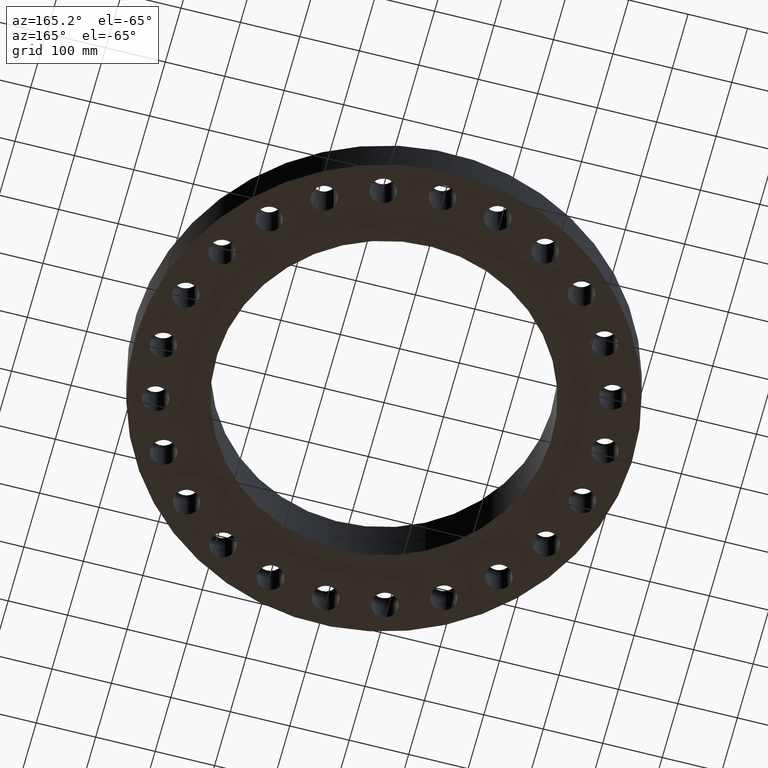
[diagram: clean part render]
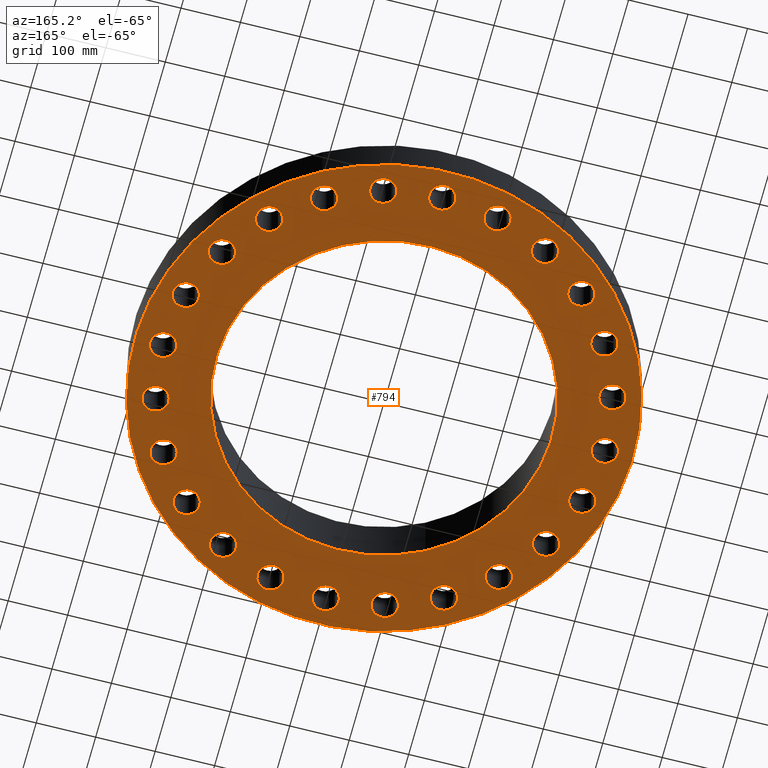
[diagram: same view with one face highlighted and labeled with its STEP entity id]
A machine part, auxiliary view. The second image highlights one B-rep face of the part: STEP entity #794.
In plain terms, the highlighted planar face has unit normal (0, 0, -1).
Its self-contained STEP definition (entity closure, byte-faithful):
#51=AXIS2_PLACEMENT_3D('Circle Axis2P3D',#49,#50,$) ;
#77=AXIS2_PLACEMENT_3D('Circle Axis2P3D',#75,#76,$) ;
#99=AXIS2_PLACEMENT_3D('Circle Axis2P3D',#97,#98,$) ;
#134=AXIS2_PLACEMENT_3D('Circle Axis2P3D',#132,#133,$) ;
#334=AXIS2_PLACEMENT_3D('Circle Axis2P3D',#332,#333,$) ;
#353=AXIS2_PLACEMENT_3D('Circle Axis2P3D',#351,#352,$) ;
#366=AXIS2_PLACEMENT_3D('Plane Axis2P3D',#363,#364,#365) ;
#382=AXIS2_PLACEMENT_3D('Circle Axis2P3D',#380,#381,$) ;
#391=AXIS2_PLACEMENT_3D('Circle Axis2P3D',#389,#390,$) ;
#400=AXIS2_PLACEMENT_3D('Circle Axis2P3D',#398,#399,$) ;
#409=AXIS2_PLACEMENT_3D('Circle Axis2P3D',#407,#408,$) ;
#418=AXIS2_PLACEMENT_3D('Circle Axis2P3D',#416,#417,$) ;
#427=AXIS2_PLACEMENT_3D('Circle Axis2P3D',#425,#426,$) ;
#436=AXIS2_PLACEMENT_3D('Circle Axis2P3D',#434,#435,$) ;
#445=AXIS2_PLACEMENT_3D('Circle Axis2P3D',#443,#444,$) ;
#454=AXIS2_PLACEMENT_3D('Circle Axis2P3D',#452,#453,$) ;
#463=AXIS2_PLACEMENT_3D('Circle Axis2P3D',#461,#462,$) ;
#472=AXIS2_PLACEMENT_3D('Circle Axis2P3D',#470,#471,$) ;
#481=AXIS2_PLACEMENT_3D('Circle Axis2P3D',#479,#480,$) ;
#490=AXIS2_PLACEMENT_3D('Circle Axis2P3D',#488,#489,$) ;
#499=AXIS2_PLACEMENT_3D('Circle Axis2P3D',#497,#498,$) ;
#508=AXIS2_PLACEMENT_3D('Circle Axis2P3D',#506,#507,$) ;
#517=AXIS2_PLACEMENT_3D('Circle Axis2P3D',#515,#516,$) ;
#526=AXIS2_PLACEMENT_3D('Circle Axis2P3D',#524,#525,$) ;
#535=AXIS2_PLACEMENT_3D('Circle Axis2P3D',#533,#534,$) ;
#544=AXIS2_PLACEMENT_3D('Circle Axis2P3D',#542,#543,$) ;
#553=AXIS2_PLACEMENT_3D('Circle Axis2P3D',#551,#552,$) ;
#562=AXIS2_PLACEMENT_3D('Circle Axis2P3D',#560,#561,$) ;
#571=AXIS2_PLACEMENT_3D('Circle Axis2P3D',#569,#570,$) ;
#580=AXIS2_PLACEMENT_3D('Circle Axis2P3D',#578,#579,$) ;
#589=AXIS2_PLACEMENT_3D('Circle Axis2P3D',#587,#588,$) ;
#598=AXIS2_PLACEMENT_3D('Circle Axis2P3D',#596,#597,$) ;
#607=AXIS2_PLACEMENT_3D('Circle Axis2P3D',#605,#606,$) ;
#616=AXIS2_PLACEMENT_3D('Circle Axis2P3D',#614,#615,$) ;
#625=AXIS2_PLACEMENT_3D('Circle Axis2P3D',#623,#624,$) ;
#634=AXIS2_PLACEMENT_3D('Circle Axis2P3D',#632,#633,$) ;
#643=AXIS2_PLACEMENT_3D('Circle Axis2P3D',#641,#642,$) ;
#652=AXIS2_PLACEMENT_3D('Circle Axis2P3D',#650,#651,$) ;
#661=AXIS2_PLACEMENT_3D('Circle Axis2P3D',#659,#660,$) ;
#670=AXIS2_PLACEMENT_3D('Circle Axis2P3D',#668,#669,$) ;
#679=AXIS2_PLACEMENT_3D('Circle Axis2P3D',#677,#678,$) ;
#688=AXIS2_PLACEMENT_3D('Circle Axis2P3D',#686,#687,$) ;
#697=AXIS2_PLACEMENT_3D('Circle Axis2P3D',#695,#696,$) ;
#706=AXIS2_PLACEMENT_3D('Circle Axis2P3D',#704,#705,$) ;
#715=AXIS2_PLACEMENT_3D('Circle Axis2P3D',#713,#714,$) ;
#724=AXIS2_PLACEMENT_3D('Circle Axis2P3D',#722,#723,$) ;
#733=AXIS2_PLACEMENT_3D('Circle Axis2P3D',#731,#732,$) ;
#742=AXIS2_PLACEMENT_3D('Circle Axis2P3D',#740,#741,$) ;
#751=AXIS2_PLACEMENT_3D('Circle Axis2P3D',#749,#750,$) ;
#760=AXIS2_PLACEMENT_3D('Circle Axis2P3D',#758,#759,$) ;
#769=AXIS2_PLACEMENT_3D('Circle Axis2P3D',#767,#768,$) ;
#778=AXIS2_PLACEMENT_3D('Circle Axis2P3D',#776,#777,$) ;
#787=AXIS2_PLACEMENT_3D('Circle Axis2P3D',#785,#786,$) ;
#44=CARTESIAN_POINT('Vertex',(13.8571152584,0.41949734628,0.)) ;
#49=CARTESIAN_POINT('Axis2P3D Location',(14.6250000001,0.,0.)) ;
#53=CARTESIAN_POINT('Vertex',(15.3928847417,-0.41949734628,0.)) ;
#75=CARTESIAN_POINT('Axis2P3D Location',(14.6250000001,0.,0.)) ;
#97=CARTESIAN_POINT('Axis2P3D Location',(0.,0.,1.95818864186E-015)) ;
#101=CARTESIAN_POINT('Vertex',(-7.910521387,-14.4801122712,1.67844740731E-015)) ;
#103=CARTESIAN_POINT('Vertex',(7.910521387,14.4801122712,1.67844740731E-015)) ;
#132=CARTESIAN_POINT('Axis2P3D Location',(0.,0.,1.95818864186E-015)) ;
#329=CARTESIAN_POINT('Vertex',(-5.32641773391,-9.74994226264,-1.3707320493E-014)) ;
#332=CARTESIAN_POINT('Axis2P3D Location',(0.,0.,-1.45465441967E-014)) ;
#336=CARTESIAN_POINT('Vertex',(5.32641773391,9.74994226264,-1.3707320493E-014)) ;
#351=CARTESIAN_POINT('Axis2P3D Location',(0.,0.,-1.45465441967E-014)) ;
#363=CARTESIAN_POINT('Axis2P3D Location',(0.,11.11,0.)) ;
#380=CARTESIAN_POINT('Axis2P3D Location',(14.1266652095,-3.78522853464,0.)) ;
#384=CARTESIAN_POINT('Vertex',(13.4935194085,-3.18128201822,0.)) ;
#386=CARTESIAN_POINT('Vertex',(14.7598110105,-4.38917505106,0.)) ;
#389=CARTESIAN_POINT('Axis2P3D Location',(14.1266652095,-3.78522853464,0.)) ;
#398=CARTESIAN_POINT('Axis2P3D Location',(12.6656215304,-7.31250000003,0.)) ;
#402=CARTESIAN_POINT('Vertex',(12.2103625101,-6.5652622705,0.)) ;
#404=CARTESIAN_POINT('Vertex',(13.1208805507,-8.05973772956,0.)) ;
#407=CARTESIAN_POINT('Axis2P3D Location',(12.6656215304,-7.31250000003,0.)) ;
#416=CARTESIAN_POINT('Axis2P3D Location',(10.3414366749,-10.3414366749,0.)) ;
#420=CARTESIAN_POINT('Vertex',(10.0950895851,-9.50183074865,0.)) ;
#422=CARTESIAN_POINT('Vertex',(10.5877837646,-11.1810426011,0.)) ;
#425=CARTESIAN_POINT('Axis2P3D Location',(10.3414366749,-10.3414366749,0.)) ;
#434=CARTESIAN_POINT('Axis2P3D Location',(7.31250000003,-12.6656215304,0.)) ;
#438=CARTESIAN_POINT('Vertex',(7.2918529879,-11.7908651638,0.)) ;
#440=CARTESIAN_POINT('Vertex',(7.33314701216,-13.540377897,0.)) ;
#443=CARTESIAN_POINT('Axis2P3D Location',(7.31250000003,-12.6656215304,0.)) ;
#452=CARTESIAN_POINT('Axis2P3D Location',(3.78522853464,-14.1266652095,0.)) ;
#456=CARTESIAN_POINT('Vertex',(3.99168865989,-13.2763716034,0.)) ;
#458=CARTESIAN_POINT('Vertex',(3.57876840939,-14.9769588157,0.)) ;
#461=CARTESIAN_POINT('Axis2P3D Location',(3.78522853464,-14.1266652095,0.)) ;
#470=CARTESIAN_POINT('Axis2P3D Location',(-2.30786518505E-015,-14.6250000001,0.)) ;
#474=CARTESIAN_POINT('Vertex',(0.41949734628,-13.8571152584,0.)) ;
#476=CARTESIAN_POINT('Vertex',(-0.41949734628,-15.3928847417,0.)) ;
#479=CARTESIAN_POINT('Axis2P3D Location',(-3.21702419734E-015,-14.6250000001,0.)) ;
#488=CARTESIAN_POINT('Axis2P3D Location',(-3.78522853464,-14.1266652095,0.)) ;
#492=CARTESIAN_POINT('Vertex',(-3.18128201822,-13.4935194085,0.)) ;
#494=CARTESIAN_POINT('Vertex',(-4.38917505106,-14.7598110105,-1.1189649382E-015)) ;
#497=CARTESIAN_POINT('Axis2P3D Location',(-3.78522853464,-14.1266652095,0.)) ;
#506=CARTESIAN_POINT('Axis2P3D Location',(-7.31250000003,-12.6656215304,0.)) ;
#510=CARTESIAN_POINT('Vertex',(-6.5652622705,-12.2103625101,0.)) ;
#512=CARTESIAN_POINT('Vertex',(-8.05973772956,-13.1208805507,-2.23792987641E-015)) ;
#515=CARTESIAN_POINT('Axis2P3D Location',(-7.31250000003,-12.6656215304,0.)) ;
#524=CARTESIAN_POINT('Axis2P3D Location',(-10.3414366749,-10.3414366749,0.)) ;
#528=CARTESIAN_POINT('Vertex',(-9.50183074865,-10.0950895851,0.)) ;
#530=CARTESIAN_POINT('Vertex',(-11.1810426011,-10.5877837646,0.)) ;
#533=CARTESIAN_POINT('Axis2P3D Location',(-10.3414366749,-10.3414366749,0.)) ;
#542=CARTESIAN_POINT('Axis2P3D Location',(-12.6656215304,-7.31250000003,0.)) ;
#546=CARTESIAN_POINT('Vertex',(-11.7908651638,-7.2918529879,0.)) ;
#548=CARTESIAN_POINT('Vertex',(-13.540377897,-7.33314701216,0.)) ;
#551=CARTESIAN_POINT('Axis2P3D Location',(-12.6656215304,-7.31250000003,0.)) ;
#560=CARTESIAN_POINT('Axis2P3D Location',(-14.1266652095,-3.78522853464,0.)) ;
#564=CARTESIAN_POINT('Vertex',(-13.2763716034,-3.99168865989,0.)) ;
#566=CARTESIAN_POINT('Vertex',(-14.9769588157,-3.57876840939,0.)) ;
#569=CARTESIAN_POINT('Axis2P3D Location',(-14.1266652095,-3.78522853464,0.)) ;
#578=CARTESIAN_POINT('Axis2P3D Location',(-14.6250000001,-2.23792987641E-015,0.)) ;
#582=CARTESIAN_POINT('Vertex',(-13.8571152584,-0.41949734628,0.)) ;
#584=CARTESIAN_POINT('Vertex',(-15.3928847417,0.41949734628,0.)) ;
#587=CARTESIAN_POINT('Axis2P3D Location',(-14.6250000001,0.,0.)) ;
#596=CARTESIAN_POINT('Axis2P3D Location',(-14.1266652095,3.78522853464,0.)) ;
#600=CARTESIAN_POINT('Vertex',(-13.4935194085,3.18128201822,0.)) ;
#602=CARTESIAN_POINT('Vertex',(-14.7598110105,4.38917505106,0.)) ;
#605=CARTESIAN_POINT('Axis2P3D Location',(-14.1266652095,3.78522853464,0.)) ;
#614=CARTESIAN_POINT('Axis2P3D Location',(-12.6656215304,7.31250000003,0.)) ;
#618=CARTESIAN_POINT('Vertex',(-12.2103625101,6.5652622705,0.)) ;
#620=CARTESIAN_POINT('Vertex',(-13.1208805507,8.05973772956,0.)) ;
#623=CARTESIAN_POINT('Axis2P3D Location',(-12.6656215304,7.31250000003,0.)) ;
#632=CARTESIAN_POINT('Axis2P3D Location',(-10.3414366749,10.3414366749,0.)) ;
#636=CARTESIAN_POINT('Vertex',(-10.0950895851,9.50183074865,0.)) ;
#638=CARTESIAN_POINT('Vertex',(-10.5877837646,11.1810426011,0.)) ;
#641=CARTESIAN_POINT('Axis2P3D Location',(-10.3414366749,10.3414366749,0.)) ;
#650=CARTESIAN_POINT('Axis2P3D Location',(-7.31250000003,12.6656215304,0.)) ;
#654=CARTESIAN_POINT('Vertex',(-7.2918529879,11.7908651638,0.)) ;
#656=CARTESIAN_POINT('Vertex',(-7.33314701216,13.540377897,0.)) ;
#659=CARTESIAN_POINT('Axis2P3D Location',(-7.31250000003,12.6656215304,0.)) ;
#668=CARTESIAN_POINT('Axis2P3D Location',(-3.78522853464,14.1266652095,0.)) ;
#672=CARTESIAN_POINT('Vertex',(-3.99168865989,13.2763716034,0.)) ;
#674=CARTESIAN_POINT('Vertex',(-3.57876840939,14.9769588157,0.)) ;
#677=CARTESIAN_POINT('Axis2P3D Location',(-3.78522853464,14.1266652095,0.)) ;
#686=CARTESIAN_POINT('Axis2P3D Location',(-1.95818864186E-015,14.6250000001,0.)) ;
#690=CARTESIAN_POINT('Vertex',(-0.41949734628,13.8571152584,0.)) ;
#692=CARTESIAN_POINT('Vertex',(0.41949734628,15.3928847417,0.)) ;
#695=CARTESIAN_POINT('Axis2P3D Location',(-2.65754172824E-015,14.6250000001,0.)) ;
#704=CARTESIAN_POINT('Axis2P3D Location',(3.78522853464,14.1266652095,0.)) ;
#708=CARTESIAN_POINT('Vertex',(3.18128201822,13.4935194085,0.)) ;
#710=CARTESIAN_POINT('Vertex',(4.38917505106,14.7598110105,0.)) ;
#713=CARTESIAN_POINT('Axis2P3D Location',(3.78522853464,14.1266652095,0.)) ;
#722=CARTESIAN_POINT('Axis2P3D Location',(7.31250000003,12.6656215304,0.)) ;
#726=CARTESIAN_POINT('Vertex',(6.5652622705,12.2103625101,0.)) ;
#728=CARTESIAN_POINT('Vertex',(8.05973772956,13.1208805507,0.)) ;
#731=CARTESIAN_POINT('Axis2P3D Location',(7.31250000003,12.6656215304,0.)) ;
#740=CARTESIAN_POINT('Axis2P3D Location',(10.3414366749,10.3414366749,0.)) ;
#744=CARTESIAN_POINT('Vertex',(9.50183074865,10.0950895851,0.)) ;
#746=CARTESIAN_POINT('Vertex',(11.1810426011,10.5877837646,0.)) ;
#749=CARTESIAN_POINT('Axis2P3D Location',(10.3414366749,10.3414366749,0.)) ;
#758=CARTESIAN_POINT('Axis2P3D Location',(12.6656215304,7.31250000003,0.)) ;
#762=CARTESIAN_POINT('Vertex',(11.7908651638,7.2918529879,0.)) ;
#764=CARTESIAN_POINT('Vertex',(13.540377897,7.33314701216,0.)) ;
#767=CARTESIAN_POINT('Axis2P3D Location',(12.6656215304,7.31250000003,0.)) ;
#776=CARTESIAN_POINT('Axis2P3D Location',(14.1266652095,3.78522853464,0.)) ;
#780=CARTESIAN_POINT('Vertex',(13.2763716034,3.99168865989,0.)) ;
#782=CARTESIAN_POINT('Vertex',(14.9769588157,3.57876840939,0.)) ;
#785=CARTESIAN_POINT('Axis2P3D Location',(14.1266652095,3.78522853464,0.)) ;
#50=DIRECTION('Axis2P3D Direction',(0.,-0.,-0.0393700787402)) ;
#76=DIRECTION('Axis2P3D Direction',(0.,-0.,-0.0393700787402)) ;
#98=DIRECTION('Axis2P3D Direction',(0.,0.,-0.0393700787402)) ;
#133=DIRECTION('Axis2P3D Direction',(0.,0.,-0.0393700787402)) ;
#333=DIRECTION('Axis2P3D Direction',(0.,0.,-0.0393700787402)) ;
#352=DIRECTION('Axis2P3D Direction',(0.,0.,-0.0393700787402)) ;
#364=DIRECTION('Axis2P3D Direction',(0.,0.,-0.0393700787402)) ;
#365=DIRECTION('Axis2P3D XDirection',(0.0393700787402,0.,0.)) ;
#381=DIRECTION('Axis2P3D Direction',(0.,0.,-0.0393700787402)) ;
#390=DIRECTION('Axis2P3D Direction',(0.,0.,-0.0393700787402)) ;
#399=DIRECTION('Axis2P3D Direction',(0.,0.,-0.0393700787402)) ;
#408=DIRECTION('Axis2P3D Direction',(0.,0.,-0.0393700787402)) ;
#417=DIRECTION('Axis2P3D Direction',(0.,0.,-0.0393700787402)) ;
#426=DIRECTION('Axis2P3D Direction',(0.,0.,-0.0393700787402)) ;
#435=DIRECTION('Axis2P3D Direction',(0.,0.,-0.0393700787402)) ;
#444=DIRECTION('Axis2P3D Direction',(0.,0.,-0.0393700787402)) ;
#453=DIRECTION('Axis2P3D Direction',(0.,0.,-0.0393700787402)) ;
#462=DIRECTION('Axis2P3D Direction',(0.,0.,-0.0393700787402)) ;
#471=DIRECTION('Axis2P3D Direction',(0.,0.,-0.0393700787402)) ;
#480=DIRECTION('Axis2P3D Direction',(0.,0.,-0.0393700787402)) ;
#489=DIRECTION('Axis2P3D Direction',(0.,0.,-0.0393700787402)) ;
#498=DIRECTION('Axis2P3D Direction',(0.,0.,-0.0393700787402)) ;
#507=DIRECTION('Axis2P3D Direction',(0.,0.,-0.0393700787402)) ;
#516=DIRECTION('Axis2P3D Direction',(0.,0.,-0.0393700787402)) ;
#525=DIRECTION('Axis2P3D Direction',(0.,0.,-0.0393700787402)) ;
#534=DIRECTION('Axis2P3D Direction',(0.,0.,-0.0393700787402)) ;
#543=DIRECTION('Axis2P3D Direction',(0.,0.,-0.0393700787402)) ;
#552=DIRECTION('Axis2P3D Direction',(0.,0.,-0.0393700787402)) ;
#561=DIRECTION('Axis2P3D Direction',(0.,0.,-0.0393700787402)) ;
#570=DIRECTION('Axis2P3D Direction',(0.,0.,-0.0393700787402)) ;
#579=DIRECTION('Axis2P3D Direction',(0.,0.,-0.0393700787402)) ;
#588=DIRECTION('Axis2P3D Direction',(0.,0.,-0.0393700787402)) ;
#597=DIRECTION('Axis2P3D Direction',(0.,0.,-0.0393700787402)) ;
#606=DIRECTION('Axis2P3D Direction',(0.,0.,-0.0393700787402)) ;
#615=DIRECTION('Axis2P3D Direction',(0.,0.,-0.0393700787402)) ;
#624=DIRECTION('Axis2P3D Direction',(0.,0.,-0.0393700787402)) ;
#633=DIRECTION('Axis2P3D Direction',(0.,0.,-0.0393700787402)) ;
#642=DIRECTION('Axis2P3D Direction',(0.,0.,-0.0393700787402)) ;
#651=DIRECTION('Axis2P3D Direction',(0.,0.,-0.0393700787402)) ;
#660=DIRECTION('Axis2P3D Direction',(0.,0.,-0.0393700787402)) ;
#669=DIRECTION('Axis2P3D Direction',(0.,0.,-0.0393700787402)) ;
#678=DIRECTION('Axis2P3D Direction',(0.,0.,-0.0393700787402)) ;
#687=DIRECTION('Axis2P3D Direction',(0.,0.,-0.0393700787402)) ;
#696=DIRECTION('Axis2P3D Direction',(0.,0.,-0.0393700787402)) ;
#705=DIRECTION('Axis2P3D Direction',(0.,0.,-0.0393700787402)) ;
#714=DIRECTION('Axis2P3D Direction',(0.,0.,-0.0393700787402)) ;
#723=DIRECTION('Axis2P3D Direction',(0.,0.,-0.0393700787402)) ;
#732=DIRECTION('Axis2P3D Direction',(0.,0.,-0.0393700787402)) ;
#741=DIRECTION('Axis2P3D Direction',(0.,0.,-0.0393700787402)) ;
#750=DIRECTION('Axis2P3D Direction',(0.,0.,-0.0393700787402)) ;
#759=DIRECTION('Axis2P3D Direction',(0.,0.,-0.0393700787402)) ;
#768=DIRECTION('Axis2P3D Direction',(0.,0.,-0.0393700787402)) ;
#777=DIRECTION('Axis2P3D Direction',(0.,0.,-0.0393700787402)) ;
#786=DIRECTION('Axis2P3D Direction',(0.,0.,-0.0393700787402)) ;
#369=ORIENTED_EDGE('',*,*,#105,.T.) ;
#370=ORIENTED_EDGE('',*,*,#136,.T.) ;
#373=ORIENTED_EDGE('',*,*,#79,.F.) ;
#374=ORIENTED_EDGE('',*,*,#55,.F.) ;
#377=ORIENTED_EDGE('',*,*,#355,.F.) ;
#378=ORIENTED_EDGE('',*,*,#338,.F.) ;
#395=ORIENTED_EDGE('',*,*,#388,.F.) ;
#396=ORIENTED_EDGE('',*,*,#393,.F.) ;
#413=ORIENTED_EDGE('',*,*,#406,.F.) ;
#414=ORIENTED_EDGE('',*,*,#411,.F.) ;
#431=ORIENTED_EDGE('',*,*,#424,.F.) ;
#432=ORIENTED_EDGE('',*,*,#429,.F.) ;
#449=ORIENTED_EDGE('',*,*,#442,.F.) ;
#450=ORIENTED_EDGE('',*,*,#447,.F.) ;
#467=ORIENTED_EDGE('',*,*,#460,.F.) ;
#468=ORIENTED_EDGE('',*,*,#465,.F.) ;
#485=ORIENTED_EDGE('',*,*,#478,.F.) ;
#486=ORIENTED_EDGE('',*,*,#483,.F.) ;
#503=ORIENTED_EDGE('',*,*,#496,.F.) ;
#504=ORIENTED_EDGE('',*,*,#501,.F.) ;
#521=ORIENTED_EDGE('',*,*,#514,.F.) ;
#522=ORIENTED_EDGE('',*,*,#519,.F.) ;
#539=ORIENTED_EDGE('',*,*,#532,.F.) ;
#540=ORIENTED_EDGE('',*,*,#537,.F.) ;
#557=ORIENTED_EDGE('',*,*,#550,.F.) ;
#558=ORIENTED_EDGE('',*,*,#555,.F.) ;
#575=ORIENTED_EDGE('',*,*,#568,.F.) ;
#576=ORIENTED_EDGE('',*,*,#573,.F.) ;
#593=ORIENTED_EDGE('',*,*,#586,.F.) ;
#594=ORIENTED_EDGE('',*,*,#591,.F.) ;
#611=ORIENTED_EDGE('',*,*,#604,.F.) ;
#612=ORIENTED_EDGE('',*,*,#609,.F.) ;
#629=ORIENTED_EDGE('',*,*,#622,.F.) ;
#630=ORIENTED_EDGE('',*,*,#627,.F.) ;
#647=ORIENTED_EDGE('',*,*,#640,.F.) ;
#648=ORIENTED_EDGE('',*,*,#645,.F.) ;
#665=ORIENTED_EDGE('',*,*,#658,.F.) ;
#666=ORIENTED_EDGE('',*,*,#663,.F.) ;
#683=ORIENTED_EDGE('',*,*,#676,.F.) ;
#684=ORIENTED_EDGE('',*,*,#681,.F.) ;
#701=ORIENTED_EDGE('',*,*,#694,.F.) ;
#702=ORIENTED_EDGE('',*,*,#699,.F.) ;
#719=ORIENTED_EDGE('',*,*,#712,.F.) ;
#720=ORIENTED_EDGE('',*,*,#717,.F.) ;
#737=ORIENTED_EDGE('',*,*,#730,.F.) ;
#738=ORIENTED_EDGE('',*,*,#735,.F.) ;
#755=ORIENTED_EDGE('',*,*,#748,.F.) ;
#756=ORIENTED_EDGE('',*,*,#753,.F.) ;
#773=ORIENTED_EDGE('',*,*,#766,.F.) ;
#774=ORIENTED_EDGE('',*,*,#771,.F.) ;
#791=ORIENTED_EDGE('',*,*,#784,.F.) ;
#792=ORIENTED_EDGE('',*,*,#789,.F.) ;
#375=FACE_BOUND('',#372,.T.) ;
#379=FACE_BOUND('',#376,.T.) ;
#397=FACE_BOUND('',#394,.T.) ;
#415=FACE_BOUND('',#412,.T.) ;
#433=FACE_BOUND('',#430,.T.) ;
#451=FACE_BOUND('',#448,.T.) ;
#469=FACE_BOUND('',#466,.T.) ;
#487=FACE_BOUND('',#484,.T.) ;
#505=FACE_BOUND('',#502,.T.) ;
#523=FACE_BOUND('',#520,.T.) ;
#541=FACE_BOUND('',#538,.T.) ;
#559=FACE_BOUND('',#556,.T.) ;
#577=FACE_BOUND('',#574,.T.) ;
#595=FACE_BOUND('',#592,.T.) ;
#613=FACE_BOUND('',#610,.T.) ;
#631=FACE_BOUND('',#628,.T.) ;
#649=FACE_BOUND('',#646,.T.) ;
#667=FACE_BOUND('',#664,.T.) ;
#685=FACE_BOUND('',#682,.T.) ;
#703=FACE_BOUND('',#700,.T.) ;
#721=FACE_BOUND('',#718,.T.) ;
#739=FACE_BOUND('',#736,.T.) ;
#757=FACE_BOUND('',#754,.T.) ;
#775=FACE_BOUND('',#772,.T.) ;
#793=FACE_BOUND('',#790,.T.) ;
#794=ADVANCED_FACE('PartBody',(#371,#375,#379,#397,#415,#433,#451,#469,#487,#505,#523,#541,#559,#577,#595,#613,#631,#649,#667,#685,#703,#721,#739,#757,#775,#793),#367,.T.) ;
#52=CIRCLE('generated circle',#51,0.875000000004) ;
#78=CIRCLE('generated circle',#77,0.875000000004) ;
#100=CIRCLE('generated circle',#99,16.5000000001) ;
#135=CIRCLE('generated circle',#134,16.5000000001) ;
#335=CIRCLE('generated circle',#334,11.11) ;
#354=CIRCLE('generated circle',#353,11.11) ;
#383=CIRCLE('generated circle',#382,0.875000000004) ;
#392=CIRCLE('generated circle',#391,0.875000000004) ;
#401=CIRCLE('generated circle',#400,0.875000000003) ;
#410=CIRCLE('generated circle',#409,0.875000000003) ;
#419=CIRCLE('generated circle',#418,0.875000000004) ;
#428=CIRCLE('generated circle',#427,0.875000000004) ;
#437=CIRCLE('generated circle',#436,0.875000000003) ;
#446=CIRCLE('generated circle',#445,0.875000000003) ;
#455=CIRCLE('generated circle',#454,0.875000000004) ;
#464=CIRCLE('generated circle',#463,0.875000000004) ;
#473=CIRCLE('generated circle',#472,0.875000000004) ;
#482=CIRCLE('generated circle',#481,0.875000000004) ;
#491=CIRCLE('generated circle',#490,0.875000000004) ;
#500=CIRCLE('generated circle',#499,0.875000000004) ;
#509=CIRCLE('generated circle',#508,0.875000000003) ;
#518=CIRCLE('generated circle',#517,0.875000000003) ;
#527=CIRCLE('generated circle',#526,0.875000000004) ;
#536=CIRCLE('generated circle',#535,0.875000000004) ;
#545=CIRCLE('generated circle',#544,0.875000000003) ;
#554=CIRCLE('generated circle',#553,0.875000000003) ;
#563=CIRCLE('generated circle',#562,0.875000000004) ;
#572=CIRCLE('generated circle',#571,0.875000000004) ;
#581=CIRCLE('generated circle',#580,0.875000000004) ;
#590=CIRCLE('generated circle',#589,0.875000000004) ;
#599=CIRCLE('generated circle',#598,0.875000000004) ;
#608=CIRCLE('generated circle',#607,0.875000000004) ;
#617=CIRCLE('generated circle',#616,0.875000000003) ;
#626=CIRCLE('generated circle',#625,0.875000000003) ;
#635=CIRCLE('generated circle',#634,0.875000000004) ;
#644=CIRCLE('generated circle',#643,0.875000000004) ;
#653=CIRCLE('generated circle',#652,0.875000000003) ;
#662=CIRCLE('generated circle',#661,0.875000000003) ;
#671=CIRCLE('generated circle',#670,0.875000000004) ;
#680=CIRCLE('generated circle',#679,0.875000000004) ;
#689=CIRCLE('generated circle',#688,0.875000000004) ;
#698=CIRCLE('generated circle',#697,0.875000000004) ;
#707=CIRCLE('generated circle',#706,0.875000000004) ;
#716=CIRCLE('generated circle',#715,0.875000000004) ;
#725=CIRCLE('generated circle',#724,0.875000000003) ;
#734=CIRCLE('generated circle',#733,0.875000000003) ;
#743=CIRCLE('generated circle',#742,0.875000000004) ;
#752=CIRCLE('generated circle',#751,0.875000000004) ;
#761=CIRCLE('generated circle',#760,0.875000000003) ;
#770=CIRCLE('generated circle',#769,0.875000000003) ;
#779=CIRCLE('generated circle',#778,0.875000000004) ;
#788=CIRCLE('generated circle',#787,0.875000000004) ;
#55=EDGE_CURVE('',#45,#54,#52,.T.) ;
#79=EDGE_CURVE('',#54,#45,#78,.T.) ;
#105=EDGE_CURVE('',#102,#104,#100,.T.) ;
#136=EDGE_CURVE('',#104,#102,#135,.T.) ;
#338=EDGE_CURVE('',#330,#337,#335,.T.) ;
#355=EDGE_CURVE('',#337,#330,#354,.T.) ;
#388=EDGE_CURVE('',#385,#387,#383,.T.) ;
#393=EDGE_CURVE('',#387,#385,#392,.T.) ;
#406=EDGE_CURVE('',#403,#405,#401,.T.) ;
#411=EDGE_CURVE('',#405,#403,#410,.T.) ;
#424=EDGE_CURVE('',#421,#423,#419,.T.) ;
#429=EDGE_CURVE('',#423,#421,#428,.T.) ;
#442=EDGE_CURVE('',#439,#441,#437,.T.) ;
#447=EDGE_CURVE('',#441,#439,#446,.T.) ;
#460=EDGE_CURVE('',#457,#459,#455,.T.) ;
#465=EDGE_CURVE('',#459,#457,#464,.T.) ;
#478=EDGE_CURVE('',#475,#477,#473,.T.) ;
#483=EDGE_CURVE('',#477,#475,#482,.T.) ;
#496=EDGE_CURVE('',#493,#495,#491,.T.) ;
#501=EDGE_CURVE('',#495,#493,#500,.T.) ;
#514=EDGE_CURVE('',#511,#513,#509,.T.) ;
#519=EDGE_CURVE('',#513,#511,#518,.T.) ;
#532=EDGE_CURVE('',#529,#531,#527,.T.) ;
#537=EDGE_CURVE('',#531,#529,#536,.T.) ;
#550=EDGE_CURVE('',#547,#549,#545,.T.) ;
#555=EDGE_CURVE('',#549,#547,#554,.T.) ;
#568=EDGE_CURVE('',#565,#567,#563,.T.) ;
#573=EDGE_CURVE('',#567,#565,#572,.T.) ;
#586=EDGE_CURVE('',#583,#585,#581,.T.) ;
#591=EDGE_CURVE('',#585,#583,#590,.T.) ;
#604=EDGE_CURVE('',#601,#603,#599,.T.) ;
#609=EDGE_CURVE('',#603,#601,#608,.T.) ;
#622=EDGE_CURVE('',#619,#621,#617,.T.) ;
#627=EDGE_CURVE('',#621,#619,#626,.T.) ;
#640=EDGE_CURVE('',#637,#639,#635,.T.) ;
#645=EDGE_CURVE('',#639,#637,#644,.T.) ;
#658=EDGE_CURVE('',#655,#657,#653,.T.) ;
#663=EDGE_CURVE('',#657,#655,#662,.T.) ;
#676=EDGE_CURVE('',#673,#675,#671,.T.) ;
#681=EDGE_CURVE('',#675,#673,#680,.T.) ;
#694=EDGE_CURVE('',#691,#693,#689,.T.) ;
#699=EDGE_CURVE('',#693,#691,#698,.T.) ;
#712=EDGE_CURVE('',#709,#711,#707,.T.) ;
#717=EDGE_CURVE('',#711,#709,#716,.T.) ;
#730=EDGE_CURVE('',#727,#729,#725,.T.) ;
#735=EDGE_CURVE('',#729,#727,#734,.T.) ;
#748=EDGE_CURVE('',#745,#747,#743,.T.) ;
#753=EDGE_CURVE('',#747,#745,#752,.T.) ;
#766=EDGE_CURVE('',#763,#765,#761,.T.) ;
#771=EDGE_CURVE('',#765,#763,#770,.T.) ;
#784=EDGE_CURVE('',#781,#783,#779,.T.) ;
#789=EDGE_CURVE('',#783,#781,#788,.T.) ;
#368=EDGE_LOOP('',(#369,#370)) ;
#372=EDGE_LOOP('',(#373,#374)) ;
#376=EDGE_LOOP('',(#377,#378)) ;
#394=EDGE_LOOP('',(#395,#396)) ;
#412=EDGE_LOOP('',(#413,#414)) ;
#430=EDGE_LOOP('',(#431,#432)) ;
#448=EDGE_LOOP('',(#449,#450)) ;
#466=EDGE_LOOP('',(#467,#468)) ;
#484=EDGE_LOOP('',(#485,#486)) ;
#502=EDGE_LOOP('',(#503,#504)) ;
#520=EDGE_LOOP('',(#521,#522)) ;
#538=EDGE_LOOP('',(#539,#540)) ;
#556=EDGE_LOOP('',(#557,#558)) ;
#574=EDGE_LOOP('',(#575,#576)) ;
#592=EDGE_LOOP('',(#593,#594)) ;
#610=EDGE_LOOP('',(#611,#612)) ;
#628=EDGE_LOOP('',(#629,#630)) ;
#646=EDGE_LOOP('',(#647,#648)) ;
#664=EDGE_LOOP('',(#665,#666)) ;
#682=EDGE_LOOP('',(#683,#684)) ;
#700=EDGE_LOOP('',(#701,#702)) ;
#718=EDGE_LOOP('',(#719,#720)) ;
#736=EDGE_LOOP('',(#737,#738)) ;
#754=EDGE_LOOP('',(#755,#756)) ;
#772=EDGE_LOOP('',(#773,#774)) ;
#790=EDGE_LOOP('',(#791,#792)) ;
#371=FACE_OUTER_BOUND('',#368,.T.) ;
#367=PLANE('',#366) ;
#45=VERTEX_POINT('',#44) ;
#54=VERTEX_POINT('',#53) ;
#102=VERTEX_POINT('',#101) ;
#104=VERTEX_POINT('',#103) ;
#330=VERTEX_POINT('',#329) ;
#337=VERTEX_POINT('',#336) ;
#385=VERTEX_POINT('',#384) ;
#387=VERTEX_POINT('',#386) ;
#403=VERTEX_POINT('',#402) ;
#405=VERTEX_POINT('',#404) ;
#421=VERTEX_POINT('',#420) ;
#423=VERTEX_POINT('',#422) ;
#439=VERTEX_POINT('',#438) ;
#441=VERTEX_POINT('',#440) ;
#457=VERTEX_POINT('',#456) ;
#459=VERTEX_POINT('',#458) ;
#475=VERTEX_POINT('',#474) ;
#477=VERTEX_POINT('',#476) ;
#493=VERTEX_POINT('',#492) ;
#495=VERTEX_POINT('',#494) ;
#511=VERTEX_POINT('',#510) ;
#513=VERTEX_POINT('',#512) ;
#529=VERTEX_POINT('',#528) ;
#531=VERTEX_POINT('',#530) ;
#547=VERTEX_POINT('',#546) ;
#549=VERTEX_POINT('',#548) ;
#565=VERTEX_POINT('',#564) ;
#567=VERTEX_POINT('',#566) ;
#583=VERTEX_POINT('',#582) ;
#585=VERTEX_POINT('',#584) ;
#601=VERTEX_POINT('',#600) ;
#603=VERTEX_POINT('',#602) ;
#619=VERTEX_POINT('',#618) ;
#621=VERTEX_POINT('',#620) ;
#637=VERTEX_POINT('',#636) ;
#639=VERTEX_POINT('',#638) ;
#655=VERTEX_POINT('',#654) ;
#657=VERTEX_POINT('',#656) ;
#673=VERTEX_POINT('',#672) ;
#675=VERTEX_POINT('',#674) ;
#691=VERTEX_POINT('',#690) ;
#693=VERTEX_POINT('',#692) ;
#709=VERTEX_POINT('',#708) ;
#711=VERTEX_POINT('',#710) ;
#727=VERTEX_POINT('',#726) ;
#729=VERTEX_POINT('',#728) ;
#745=VERTEX_POINT('',#744) ;
#747=VERTEX_POINT('',#746) ;
#763=VERTEX_POINT('',#762) ;
#765=VERTEX_POINT('',#764) ;
#781=VERTEX_POINT('',#780) ;
#783=VERTEX_POINT('',#782) ;